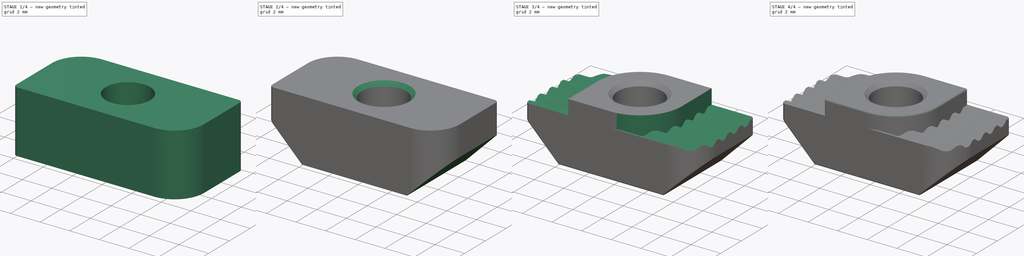
[diagram: build sequence overview — one tinted view per stage of 4, left to right]
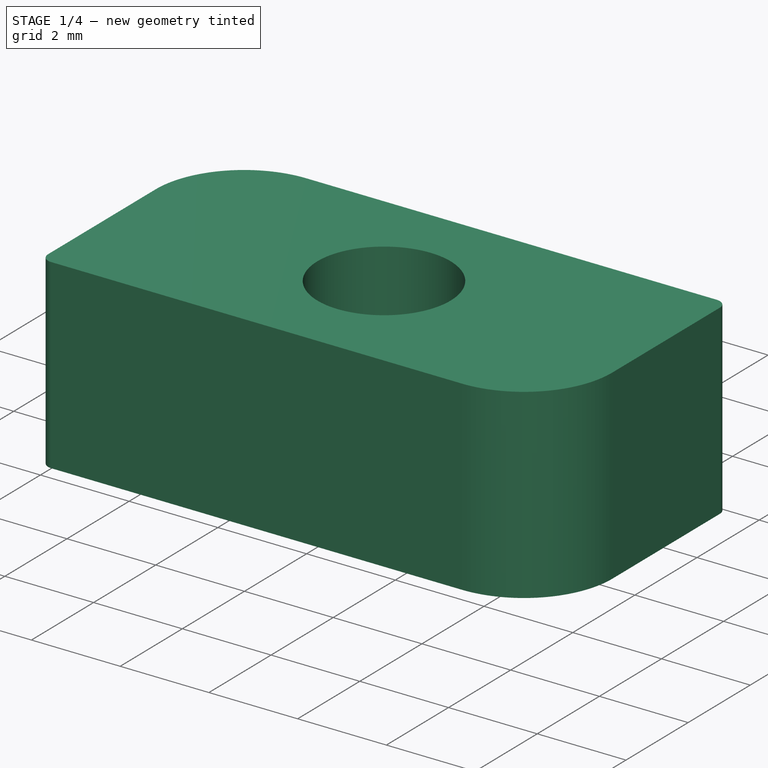
[diagram: stage 1 of 4 — iso view after this stage's code; geometry added in this stage tinted green]
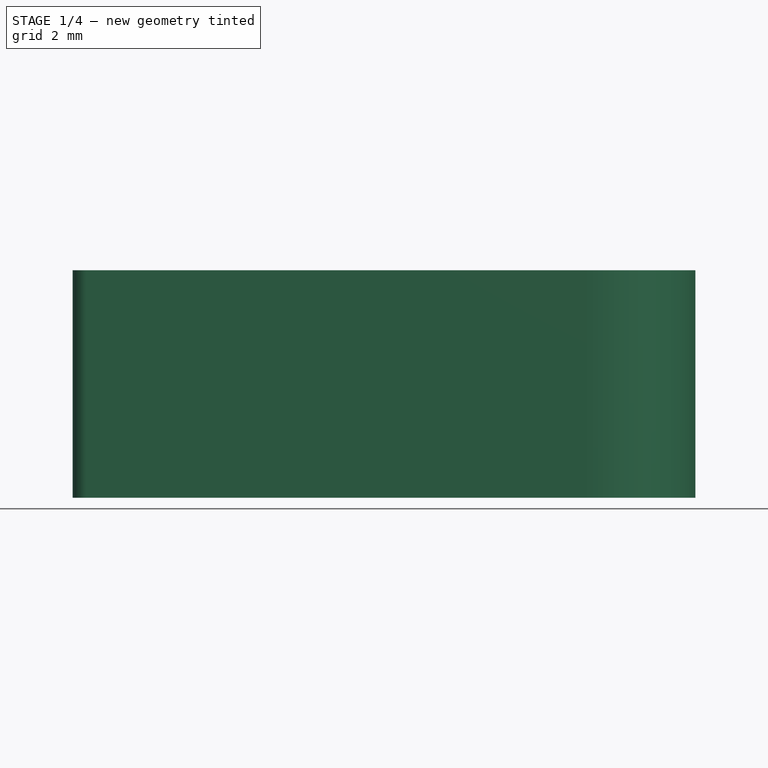
[diagram: stage 1 of 4 — front view after this stage's code; geometry added in this stage tinted green]
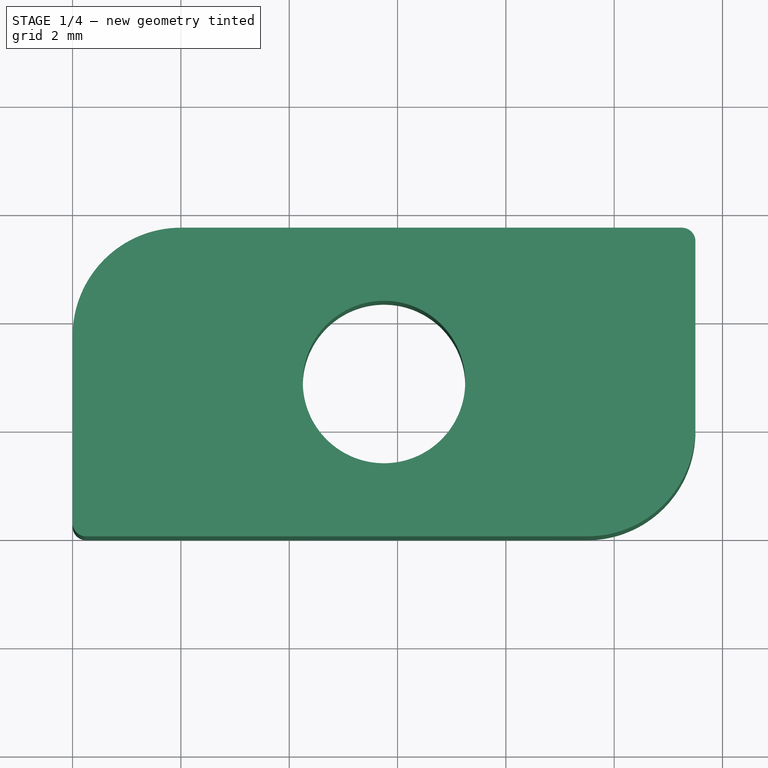
[diagram: stage 1 of 4 — top view after this stage's code; geometry added in this stage tinted green]
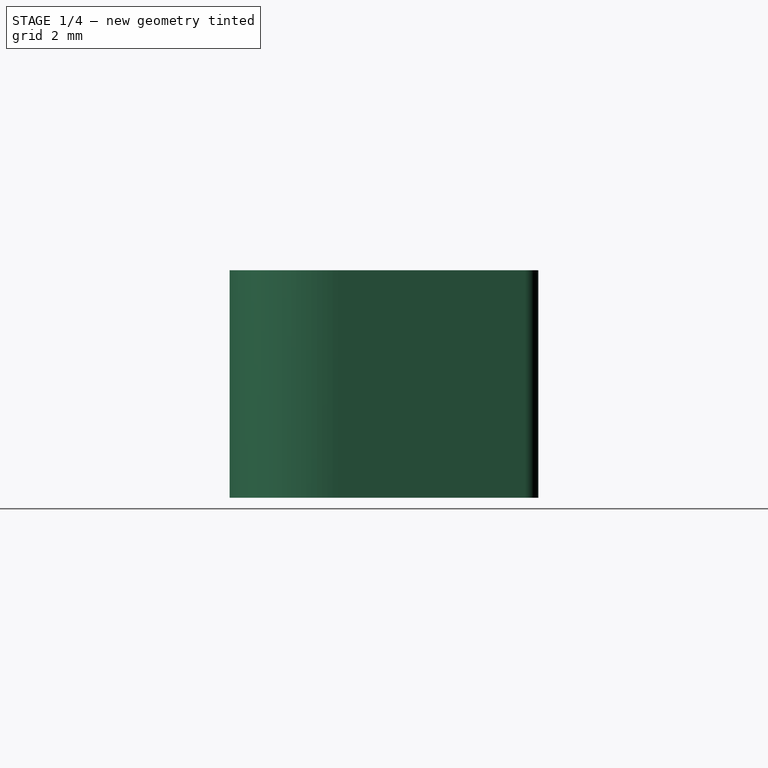
[diagram: stage 1 of 4 — right view after this stage's code; geometry added in this stage tinted green]
FCSTD DOCUMENT  (FreeCAD 0.19R24267 (Git))
Label: Hammermutter-M3
License: All rights reserved
LicenseURL: http://en.wikipedia.org/wiki/All_rights_reserved
objects: Sketcher::SketchObject×3, Part::Feature×3, PartDesign::Pocket×2, PartDesign::Chamfer×2, Part::Fillet×2, PartDesign::Pad×1, Part::Compound×1, PartDesign::Fillet×1, PartDesign::Body×1, Part::Cut×1
note: 23 computed .brp shape members not serialized (recipe doc carries the construction recipe); baked Part::Feature solids carry a one-line shape summary decoded from their .brp

FEATURE [Sketcher::SketchObject] Sketch  label="Hammermutter XY Skizze"
  FullyConstrained = true
  MapMode = 5
  Support = -> [XY_Plane]
  sketch-geometry (8):
    g0: LineSegment StartX=9.5 StartY=-9e-16 StartZ=0 EndX=0.25 EndY=3e-16 EndZ=0
    g1: LineSegment StartX=0 StartY=0.25 StartZ=0 EndX=0 EndY=3.7 EndZ=0
    g2: LineSegment StartX=2 StartY=5.7 StartZ=0 EndX=11.25 EndY=5.7 EndZ=0
    g3: LineSegment StartX=11.5 StartY=5.45 StartZ=0 EndX=11.5 EndY=2 EndZ=0
    g4: ArcOfCircle CenterX=2 CenterY=3.7 CenterZ=0 NormalX=0 NormalY=0 NormalZ=1 AngleXU=0 Radius=2 StartAngle=1.5708 EndAngle=3.14159
    g5: ArcOfCircle CenterX=9.5 CenterY=2 CenterZ=0 NormalX=0 NormalY=0 NormalZ=1 AngleXU=0 Radius=2 StartAngle=4.71239 EndAngle=6.28319
    g6: ArcOfCircle CenterX=11.25 CenterY=5.45 CenterZ=0 NormalX=0 NormalY=0 NormalZ=1 AngleXU=0 Radius=0.25 StartAngle=-9e-16 EndAngle=1.5708
    g7: ArcOfCircle CenterX=0.25 CenterY=0.25 CenterZ=0 NormalX=0 NormalY=0 NormalZ=1 AngleXU=0 Radius=0.25 StartAngle=3.14159 EndAngle=4.71239
  constraints (28):
    c: PointOnObject(g0,g-1)
    c: Vertical(g1)
    c: Horizontal(g2)
    c: Vertical(g3)
    c: Coincident(g4,g1)
    c: Coincident(g4,g2)
    c: Coincident(g5,g0)
    c: Coincident(g5,g3)
    c: Equal(g0,g2)
    c: Horizontal(g4,g1)
    c: Vertical(g2,g4)
    c: Vertical(g0,g5)
    c: Horizontal(g5,g3)
    c: Radius(g4) = 2
    c: PointOnObject(g0,g-1)
    c: Coincident(g6,g2)
    c: Coincident(g6,g3)
    c: Radius(g6) = 0.25
    c: Horizontal(g6,g3)
    c: Vertical(g2,g6)
    c: Coincident(g7,g0)
    c: Coincident(g7,g1)
    c: Equal(g7,g6)
    c: Horizontal(g1,g7)
    c: Vertical(g7,g0)
    c: DistanceX(g1,g3) = 11.5
    c: DistanceY(g0,g2) = 5.7
    c: PointOnObject(g1,g-2)
FEATURE [PartDesign::Pad] Pad  label="Grundkörper"
  Direction = (1,1,1)
  Length = 4.2
  Length2 = 100
  Profile = -> Sketch
  Type = 0
FEATURE [Sketcher::SketchObject] Sketch002  label="M3 Skizze"
  FullyConstrained = true
  MapMode = 5
  Placement = pos=(0,0,4.2) rot=(0,0,1;0rad)
  Support = -> [Pad]
  sketch-geometry (1):
    g0: Circle CenterX=5.75 CenterY=2.85 CenterZ=0 NormalX=0 NormalY=0 NormalZ=1 AngleXU=0 Radius=1.5
  constraints (3):
    c: Radius(g0) = 1.5
    c: DistanceX(g-1,g0) = 5.75
    c: DistanceY(g-1,g0) = 2.85
FEATURE [PartDesign::Pocket] Pocket  label="M3 Bohrung"
  BaseFeature = -> Pad
  Length = 5
  Length2 = 100
  Profile = -> Sketch002
  Type = 0
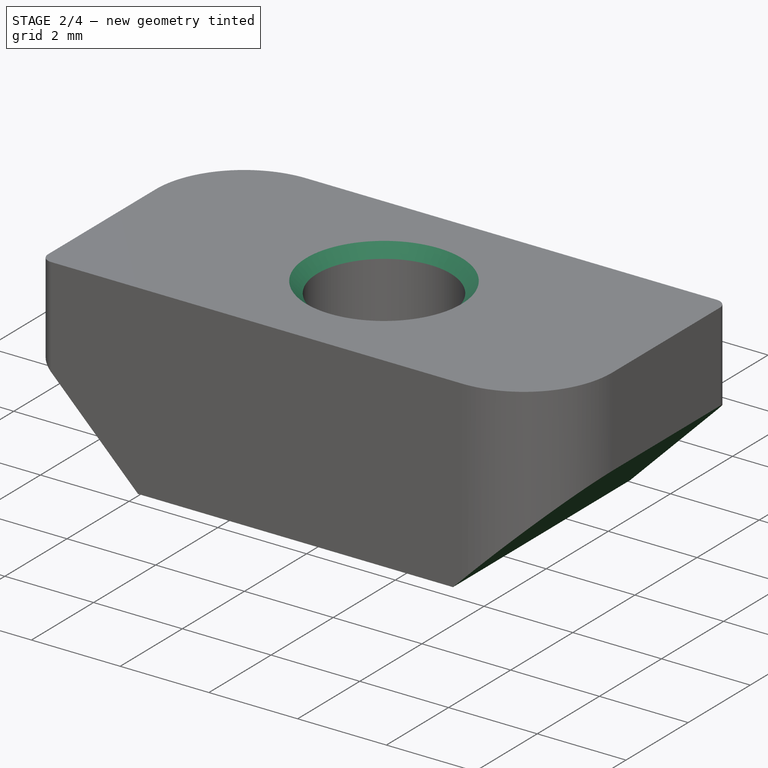
[diagram: stage 2 of 4 — iso view after this stage's code; geometry added in this stage tinted green]
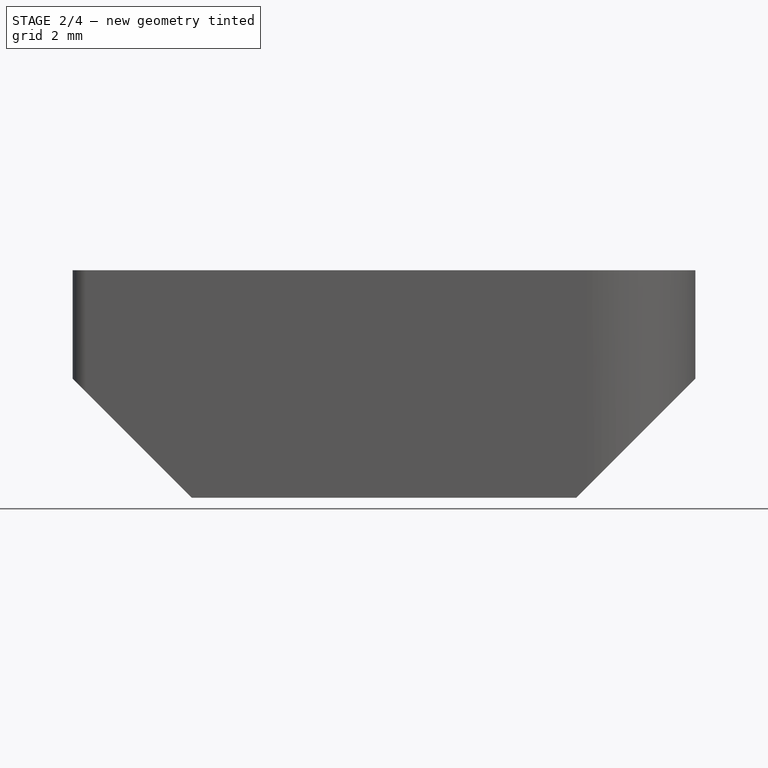
[diagram: stage 2 of 4 — front view after this stage's code; geometry added in this stage tinted green]
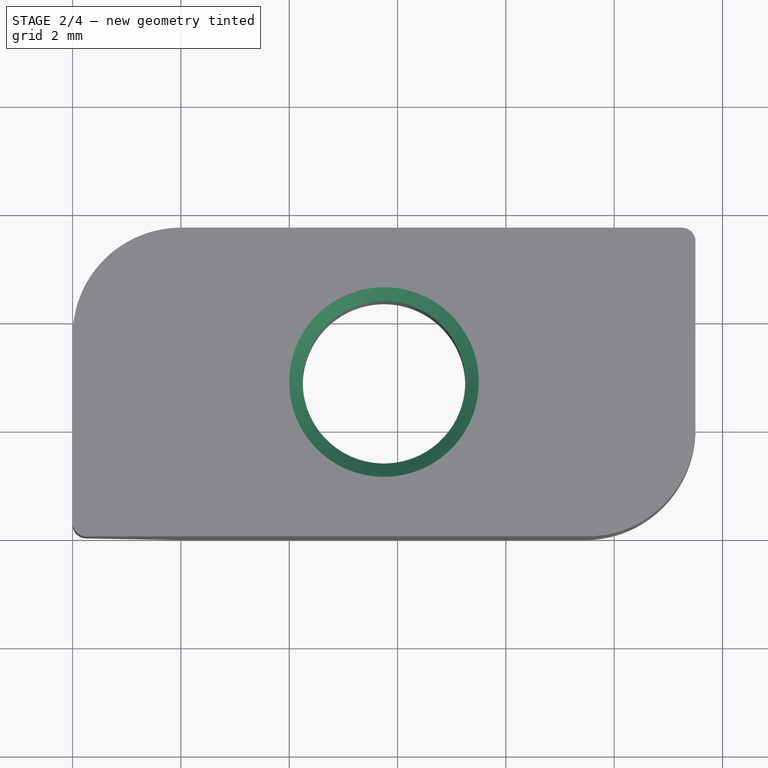
[diagram: stage 2 of 4 — top view after this stage's code; geometry added in this stage tinted green]
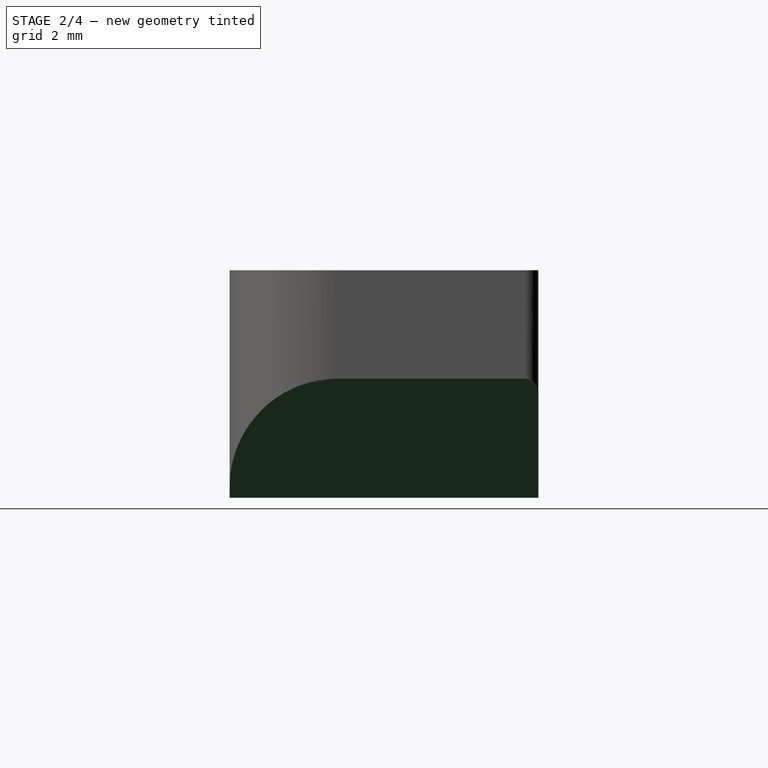
[diagram: stage 2 of 4 — right view after this stage's code; geometry added in this stage tinted green]
FEATURE [Sketcher::SketchObject] Sketch003  label="Abschraegung Skizze"
  FullyConstrained = true
  MapMode = 5
  Placement = pos=(0,3e-16,0) rot=(1,0,0;1.5708rad)
  Support = -> [Pocket]
  sketch-geometry (6):
    g0: LineSegment StartX=0 StartY=0 StartZ=0 EndX=0 EndY=2.2 EndZ=0
    g1: LineSegment StartX=0 StartY=2.2 StartZ=0 EndX=2.2 EndY=0 EndZ=0
    g2: LineSegment StartX=9.3 StartY=0 StartZ=0 EndX=11.5 EndY=0 EndZ=0
    g3: LineSegment StartX=11.5 StartY=0 StartZ=0 EndX=11.5 EndY=2.2 EndZ=0
    g4: LineSegment StartX=11.5 StartY=2.2 StartZ=0 EndX=9.3 EndY=0 EndZ=0
    g5: LineSegment StartX=0 StartY=0 StartZ=0 EndX=2.2 EndY=0 EndZ=0
  constraints (17):
    c: Coincident(g-1,g0)
    c: PointOnObject(g0,g-2)
    c: Coincident(g0,g1)
    c: PointOnObject(g1,g-1)
    c: DistanceY(g0,g0) = 2.2
    c: Angle(g1,g-1) = 0.785398
    c: PointOnObject(g2,g-1)
    c: Horizontal(g2)
    c: Coincident(g2,g3)
    c: Vertical(g3)
    c: Coincident(g3,g4)
    c: Coincident(g4,g2)
    c: Equal(g3,g0)
    c: Equal(g4,g1)
    c: Coincident(g5,g0)
    c: Coincident(g5,g1)
    c: DistanceX(g0,g2) = 11.5
FEATURE [PartDesign::Pocket] Pocket003  label="Abschrägung"
  BaseFeature = -> Pocket
  Length = 6
  Length2 = 100
  Profile = -> Sketch003
  Type = 0
FEATURE [PartDesign::Chamfer] Chamfer  label="Abrndung M3 unten"
  Angle = 45
  Base = -> Pocket003 [Edge25]
  BaseFeature = -> Pocket003
  ChamferType = 0
  FlipDirection = false
  Size = 0.5
  Size2 = 1
  SupportTransform = false
FEATURE [PartDesign::Chamfer] Chamfer001  label="M3 Abrundung Sockel"
  Angle = 45
  Base = -> Chamfer [Edge25]
  BaseFeature = -> Chamfer
  ChamferType = 0
  FlipDirection = false
  Size = 0.25
  Size2 = 1
  SupportTransform = false
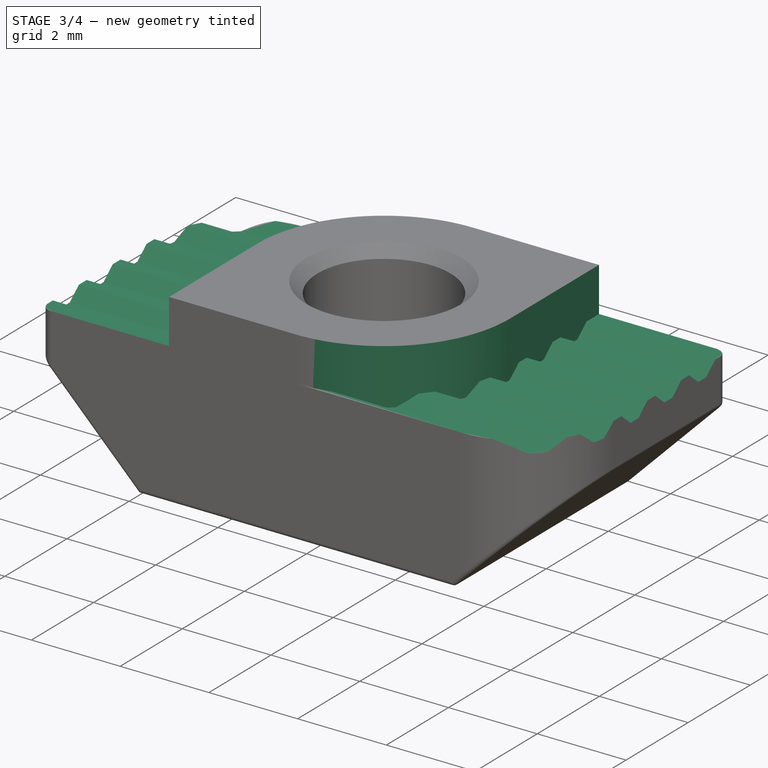
[diagram: stage 3 of 4 — iso view after this stage's code; geometry added in this stage tinted green]
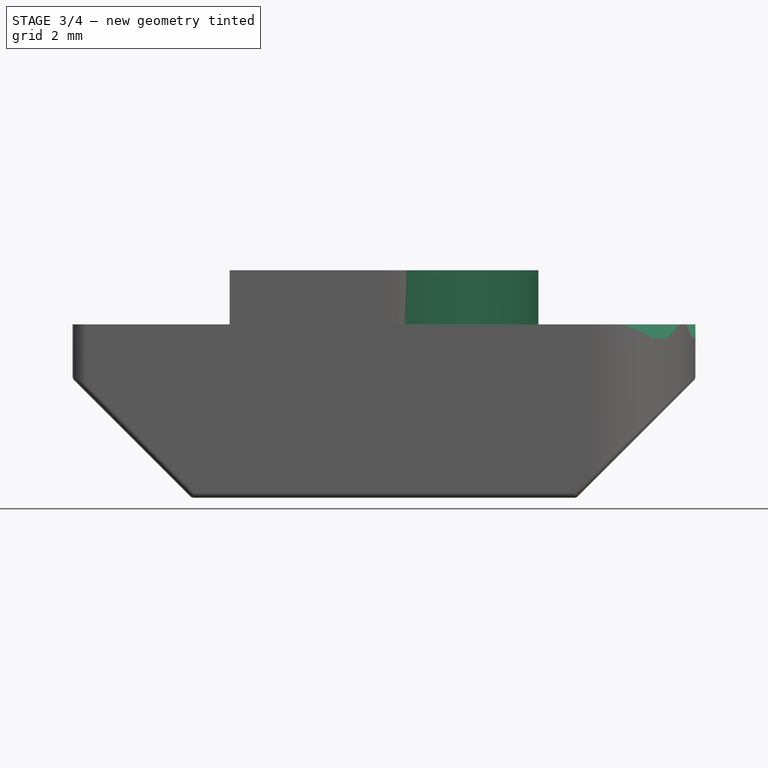
[diagram: stage 3 of 4 — front view after this stage's code; geometry added in this stage tinted green]
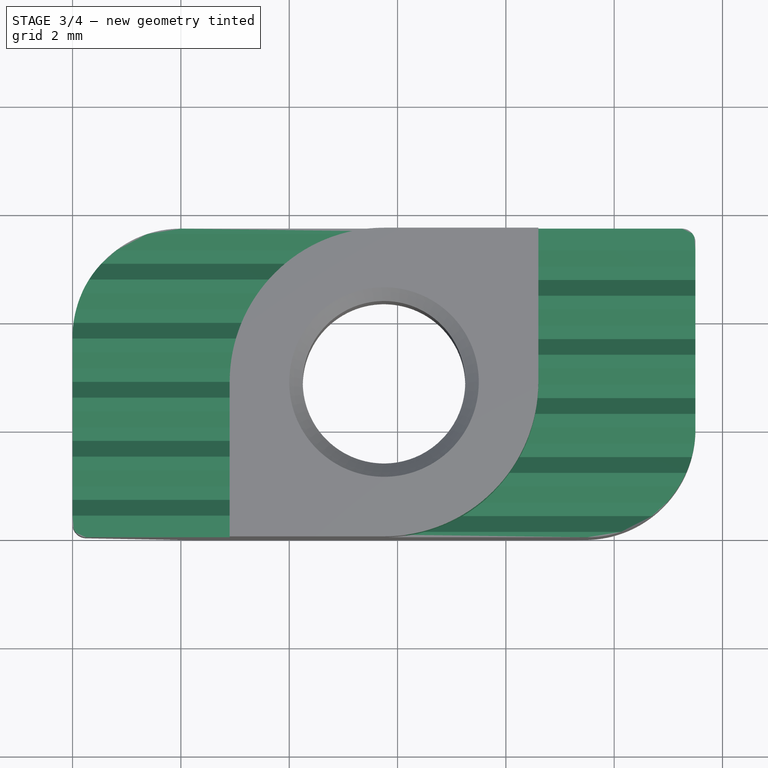
[diagram: stage 3 of 4 — top view after this stage's code; geometry added in this stage tinted green]
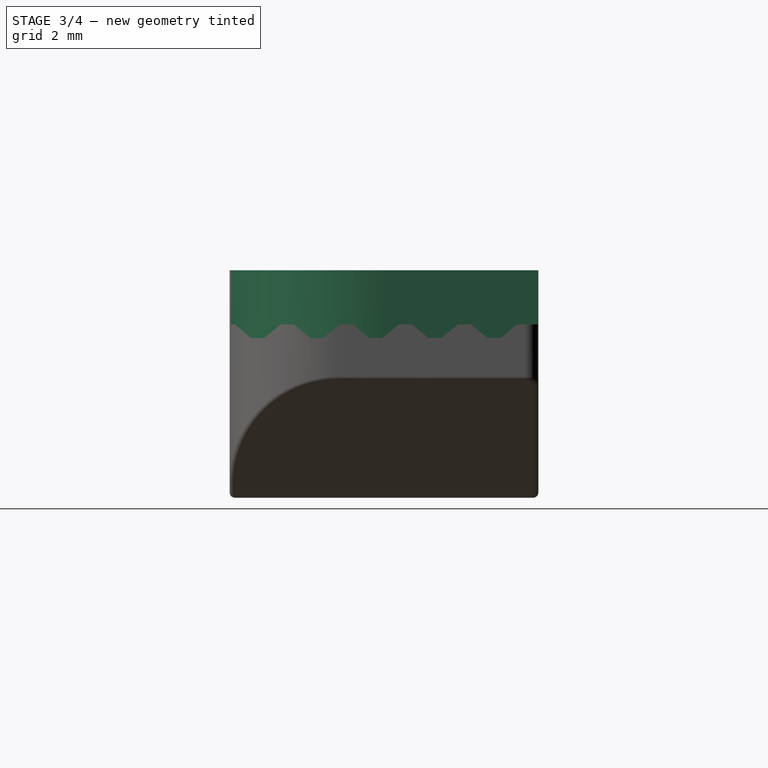
[diagram: stage 3 of 4 — right view after this stage's code; geometry added in this stage tinted green]
FEATURE [Part::Feature] Pocket002  label="Aussparung Riffel 002"
  Placement = pos=(11.5,5.7,0) rot=(0,0,1;3.14159rad)
  shape: bbox 5.75 x 6 x 1.25 mm, 30 faces (baked)
FEATURE [Part::Feature] Pocket001  label="Aussparung Riffel 001"
  shape: bbox 5.75 x 6 x 1.25 mm, 30 faces (baked)
FEATURE [Part::Compound] Compound  label="Negativ-Riffel-Form"
  Links = -> [Pocket001,Pocket002]
  Placement = pos=(0,0,2.95) rot=(0,0,1;0rad)
FEATURE [PartDesign::Fillet] Fillet
  Base = -> Chamfer001 [Edge31,Edge35,Edge37,Edge33,Edge27,Edge17,Edge18,Edge16,Edge19,Edge7,Edge30,Edge25,Edge20,Edge28,Edge23]
  BaseFeature = -> Chamfer001
  Radius = 0.1
  SupportTransform = false
FEATURE [PartDesign::Body] Body  label="Hammermutter-Form"
  Group = -> [Sketch,Pad,Sketch002,Pocket,Sketch003,Pocket003,Chamfer,Chamfer001,Fillet]
  Origin = -> Origin
  Tip = -> Fillet
FEATURE [Part::Cut] Cut  label="Hammermutter-Aussparung-Riffel"
  Base = -> Body
  Tool = -> Compound
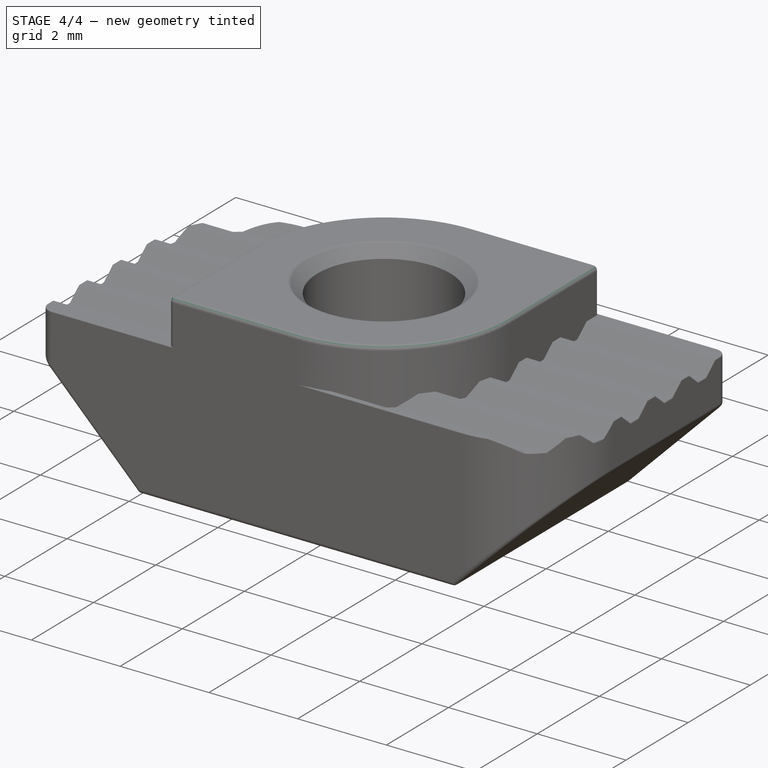
[diagram: stage 4 of 4 — iso view after this stage's code; geometry added in this stage tinted green]
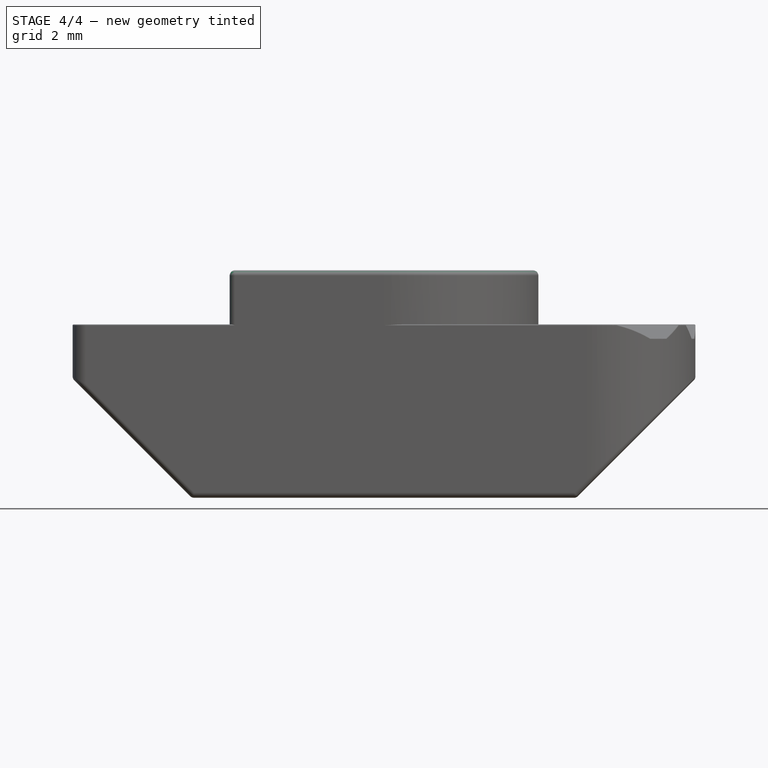
[diagram: stage 4 of 4 — front view after this stage's code; geometry added in this stage tinted green]
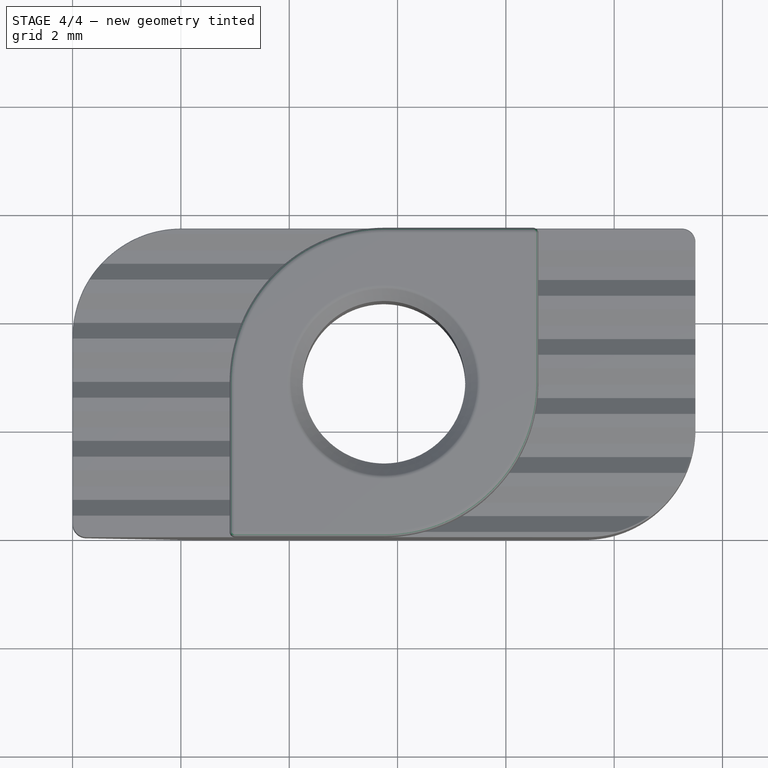
[diagram: stage 4 of 4 — top view after this stage's code; geometry added in this stage tinted green]
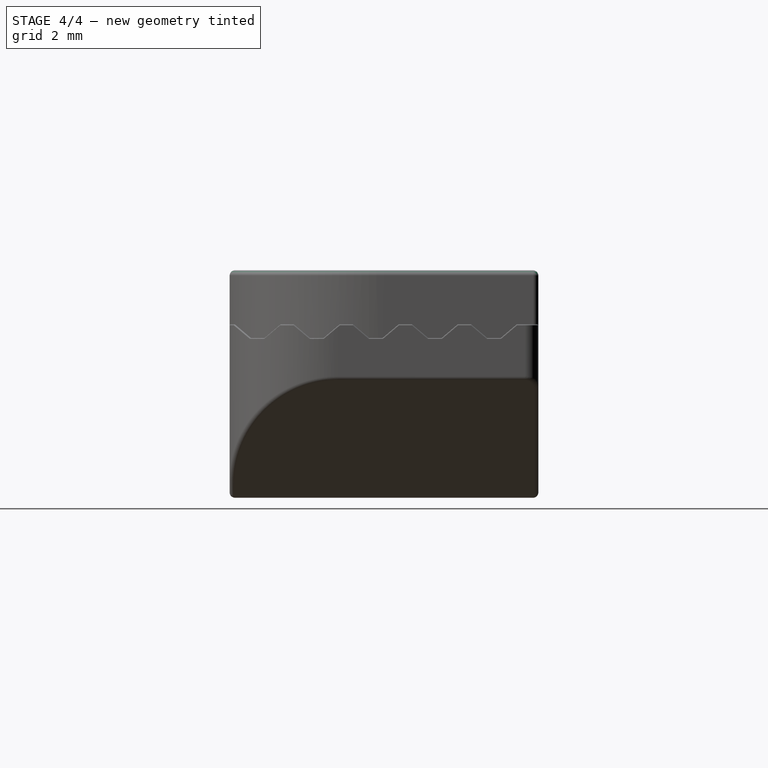
[diagram: stage 4 of 4 — right view after this stage's code; geometry added in this stage tinted green]
FEATURE [Part::Fillet] Fillet001  label="Abrundung Sockel"
  Base = -> Cut
  Edges = 9 edges r=0.1: [Edge13,Edge26,Edge27,Edge28,Edge29,Edge30,Edge31,Edge46,Edge55]
FEATURE [Part::Fillet] Fillet002  label="Abrundung Riffel"
  Base = -> Fillet001
  Edges = 52 edges r=0.02: [Edge50,Edge57,Edge86,Edge93,Edge114,Edge115,Edge116,Edge118,Edge121,Edge122,Edge125,Edge127,Edge129,Edge131,Edge133,Edge135,Edge137,Edge139,Edge140,Edge141,Edge142,Edge143,Edge144,Edge145,Edge160,Edge162,Edge163,Edge165,Edge167,Edge169,Edge171,Edge173,Edge174,Edge177,Edge178,Edge180,Edge181,Edge185,+14 more]
FEATURE [Part::Feature] Fillet002001  label="Hammermutter-M3"
  shape: bbox 11.54 x 6.17 x 4.2 mm, 151 faces (baked)
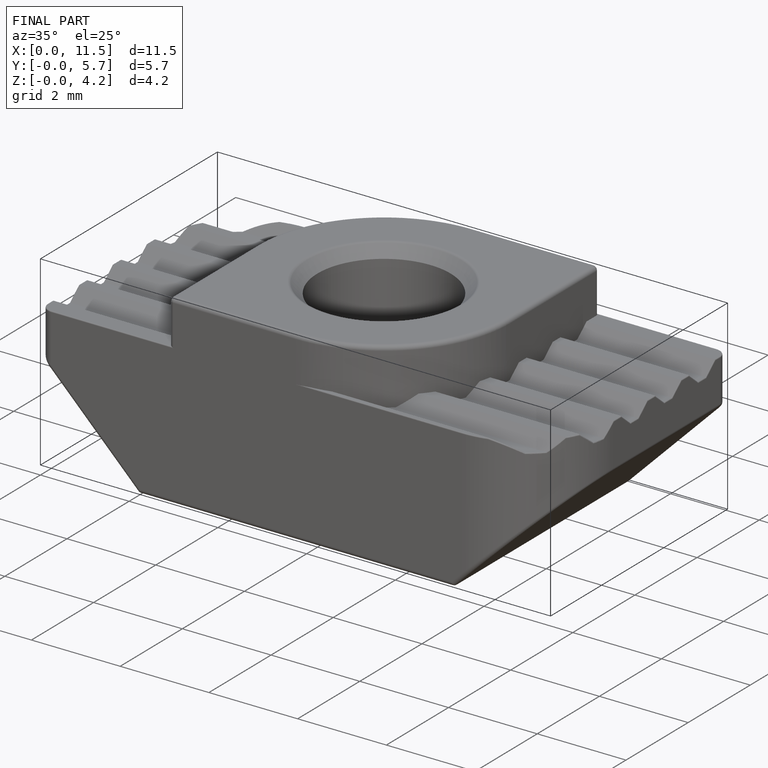
[diagram: finished part — iso view with bounding-box wireframe]
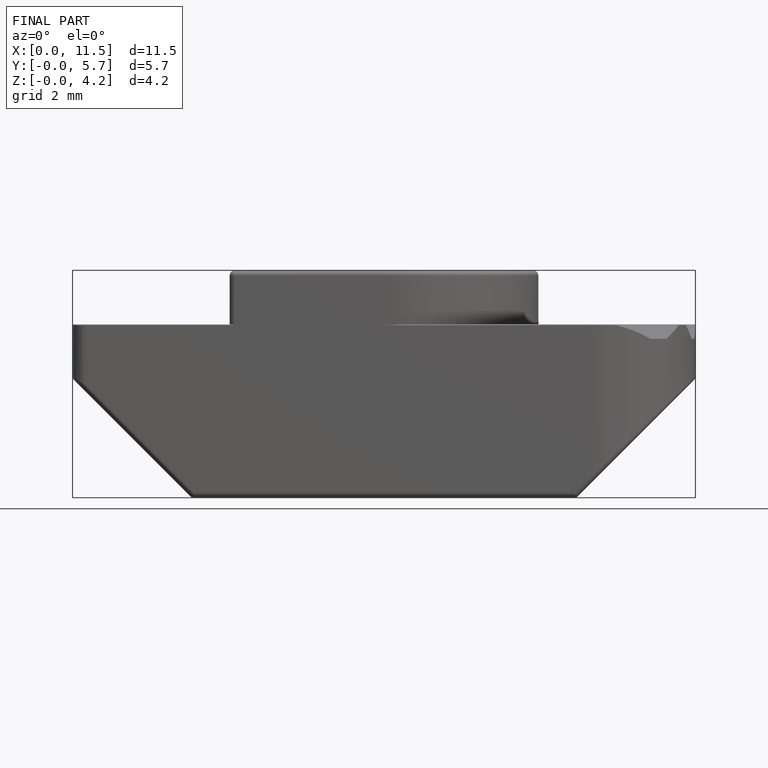
[diagram: finished part — front view with bounding-box wireframe]
